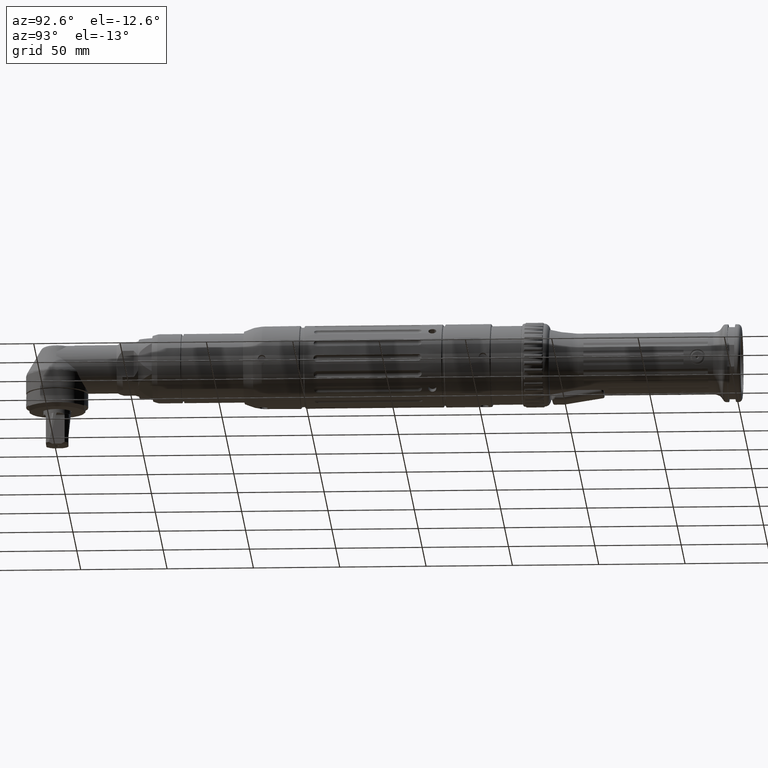
[diagram: clean part render]
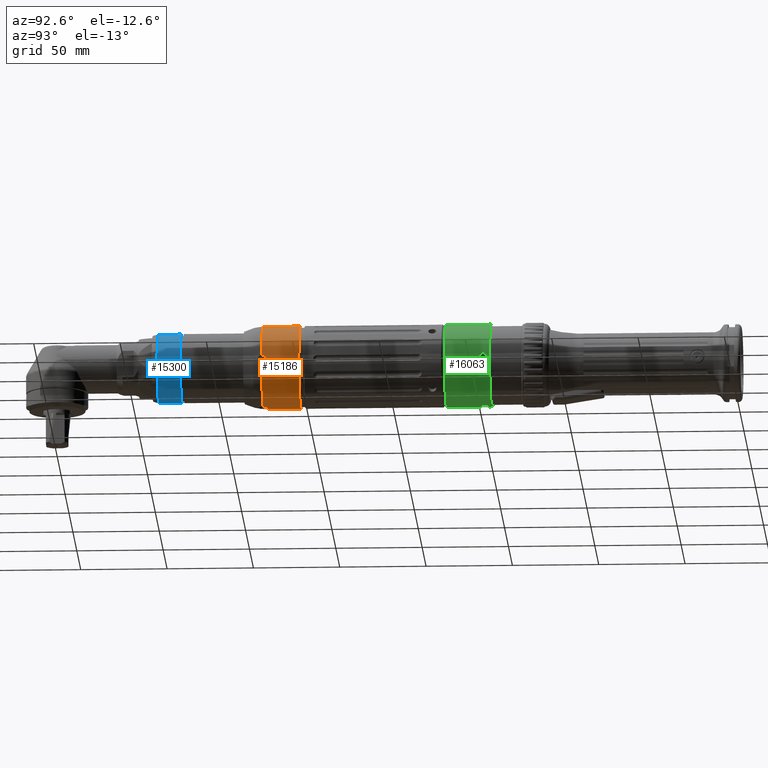
[diagram: same view with three faces highlighted in distinct colors, each labeled with its STEP entity id]
A machine part, auxiliary view with three faces highlighted in distinct colors.
Their STEP definitions:

[orange] entity #15186 — the highlighted cylindrical surface (bore or boss wall) has radius 24 mm, axis along (0, 1, 0).
#359=B_SPLINE_CURVE_WITH_KNOTS('',3,(#23452,#23453,#23454,#23455,#23456,
#23457,#23458,#23459,#23460,#23461,#23462,#23463,#23464),.UNSPECIFIED.,
 .F.,.F.,(4,2,2,2,3,4),(-0.346780210802975,-0.260085282455453,-0.173390354107931,
-0.0866951770539655,0.,0.0111795925618455),.UNSPECIFIED.);
#360=B_SPLINE_CURVE_WITH_KNOTS('',3,(#23466,#23467,#23468,#23469,#23470,
#23471,#23472,#23473,#23474,#23475,#23476,#23477),.UNSPECIFIED.,.F.,.F.,
(4,2,2,2,2,4),(-0.704740014157612,-0.693560421605951,-0.606865244551985,
-0.52017006749802,-0.433475139150498,-0.346780210802975),.UNSPECIFIED.);
#362=B_SPLINE_CURVE_WITH_KNOTS('',3,(#23506,#23507,#23508,#23509,#23510,
#23511,#23512,#23513,#23514,#23515,#23516,#23517,#23518),.UNSPECIFIED.,
 .F.,.F.,(4,2,2,2,3,4),(-0.346780210802976,-0.260085282455453,-0.173390354107931,
-0.0866951770539657,0.,0.011179592561845),.UNSPECIFIED.);
#363=B_SPLINE_CURVE_WITH_KNOTS('',3,(#23520,#23521,#23522,#23523,#23524,
#23525,#23526,#23527,#23528,#23529,#23530,#23531),.UNSPECIFIED.,.F.,.F.,
(4,2,2,2,2,4),(-0.704740014157611,-0.693560421605951,-0.606865244551986,
-0.52017006749802,-0.433475139150498,-0.346780210802976),.UNSPECIFIED.);
#366=B_SPLINE_CURVE_WITH_KNOTS('',3,(#23565,#23566,#23567,#23568,#23569,
#23570,#23571,#23572,#23573,#23574,#23575,#23576,#23577),.UNSPECIFIED.,
 .F.,.F.,(4,2,2,2,3,4),(-0.346780210802976,-0.260085282455453,-0.173390354107931,
-0.0866951770539657,0.,0.011179592561845),.UNSPECIFIED.);
#367=B_SPLINE_CURVE_WITH_KNOTS('',3,(#23579,#23580,#23581,#23582,#23583,
#23584,#23585,#23586,#23587,#23588,#23589,#23590),.UNSPECIFIED.,.F.,.F.,
(4,2,2,2,2,4),(-0.704740014157611,-0.693560421605951,-0.606865244551985,
-0.52017006749802,-0.433475139150498,-0.346780210802976),.UNSPECIFIED.);
#369=B_SPLINE_CURVE_WITH_KNOTS('',3,(#23617,#23618,#23619,#23620,#23621,
#23622,#23623,#23624,#23625,#23626,#23627,#23628),.UNSPECIFIED.,.F.,.F.,
(4,2,2,2,2,4),(-0.704740014157611,-0.693560421605951,-0.606865244551986,
-0.52017006749802,-0.433475139150498,-0.346780210802976),.UNSPECIFIED.);
#370=B_SPLINE_CURVE_WITH_KNOTS('',3,(#23630,#23631,#23632,#23633,#23634,
#23635,#23636,#23637,#23638,#23639,#23640,#23641,#23642),.UNSPECIFIED.,
 .F.,.F.,(4,2,2,2,3,4),(-0.346780210802976,-0.260085282455453,-0.173390354107931,
-0.0866951770539657,0.,0.011179592561845),.UNSPECIFIED.);
#1028=FACE_BOUND('',#4054,.T.);
#3089=FACE_OUTER_BOUND('',#4053,.T.);
#4053=EDGE_LOOP('',(#9931,#9932,#9933,#9934,#9935,#9936,#9937,#9938,#9939,
#9940,#9941,#9942));
#4054=EDGE_LOOP('',(#9943));
#5269=CIRCLE('',#16208,24.);
#5270=CIRCLE('',#16209,24.);
#5271=CIRCLE('',#16210,24.);
#5272=CIRCLE('',#16211,24.);
#5273=CIRCLE('',#16212,24.);
#6277=VERTEX_POINT('',#23450);
#6278=VERTEX_POINT('',#23451);
#6279=VERTEX_POINT('',#23465);
#6281=VERTEX_POINT('',#23504);
#6282=VERTEX_POINT('',#23505);
#6283=VERTEX_POINT('',#23519);
#6286=VERTEX_POINT('',#23563);
#6287=VERTEX_POINT('',#23564);
#6288=VERTEX_POINT('',#23578);
#6289=VERTEX_POINT('',#23614);
#6290=VERTEX_POINT('',#23616);
#6291=VERTEX_POINT('',#23629);
#6292=VERTEX_POINT('',#23646);
#7730=EDGE_CURVE('',#6277,#6278,#359,.T.);
#7731=EDGE_CURVE('',#6279,#6277,#360,.T.);
#7734=EDGE_CURVE('',#6281,#6282,#362,.T.);
#7735=EDGE_CURVE('',#6283,#6281,#363,.T.);
#7739=EDGE_CURVE('',#6286,#6287,#366,.T.);
#7740=EDGE_CURVE('',#6288,#6286,#367,.T.);
#7742=EDGE_CURVE('',#6289,#6278,#5269,.T.);
#7743=EDGE_CURVE('',#6289,#6290,#369,.T.);
#7744=EDGE_CURVE('',#6290,#6291,#370,.T.);
#7745=EDGE_CURVE('',#6288,#6291,#5270,.T.);
#7746=EDGE_CURVE('',#6283,#6287,#5271,.T.);
#7747=EDGE_CURVE('',#6279,#6282,#5272,.T.);
#7748=EDGE_CURVE('',#6292,#6292,#5273,.T.);
#9931=ORIENTED_EDGE('',*,*,#7731,.T.);
#9932=ORIENTED_EDGE('',*,*,#7730,.T.);
#9933=ORIENTED_EDGE('',*,*,#7742,.F.);
#9934=ORIENTED_EDGE('',*,*,#7743,.T.);
#9935=ORIENTED_EDGE('',*,*,#7744,.T.);
#9936=ORIENTED_EDGE('',*,*,#7745,.F.);
#9937=ORIENTED_EDGE('',*,*,#7740,.T.);
#9938=ORIENTED_EDGE('',*,*,#7739,.T.);
#9939=ORIENTED_EDGE('',*,*,#7746,.F.);
#9940=ORIENTED_EDGE('',*,*,#7735,.T.);
#9941=ORIENTED_EDGE('',*,*,#7734,.T.);
#9942=ORIENTED_EDGE('',*,*,#7747,.F.);
#9943=ORIENTED_EDGE('',*,*,#7748,.F.);
#13927=CYLINDRICAL_SURFACE('',#16207,24.);
#15186=ADVANCED_FACE('',(#3089,#1028),#13927,.T.);
#16207=AXIS2_PLACEMENT_3D('',#23613,#18376,#18377);
#16208=AXIS2_PLACEMENT_3D('',#23615,#18378,#18379);
#16209=AXIS2_PLACEMENT_3D('',#23643,#18380,#18381);
#16210=AXIS2_PLACEMENT_3D('',#23644,#18382,#18383);
#16211=AXIS2_PLACEMENT_3D('',#23645,#18384,#18385);
#16212=AXIS2_PLACEMENT_3D('',#23647,#18386,#18387);
#18376=DIRECTION('center_axis',(4.4981039857617E-16,1.,2.2204460492503E-16));
#18377=DIRECTION('ref_axis',(5.55111512312578E-17,2.51990699454335E-16,
-1.));
#18378=DIRECTION('center_axis',(-4.4981039857617E-16,-1.,-2.2204460492503E-16));
#18379=DIRECTION('ref_axis',(-1.16743491188625E-16,-2.28861053107978E-16,
1.));
#18380=DIRECTION('center_axis',(-4.4981039857617E-16,-1.,-2.2204460492503E-16));
#18381=DIRECTION('ref_axis',(-1.16743491188625E-16,-2.28861053107978E-16,
1.));
#18382=DIRECTION('center_axis',(-4.4981039857617E-16,-1.,-2.2204460492503E-16));
#18383=DIRECTION('ref_axis',(-1.16743491188625E-16,-2.28861053107978E-16,
1.));
#18384=DIRECTION('center_axis',(-4.4981039857617E-16,-1.,-2.2204460492503E-16));
#18385=DIRECTION('ref_axis',(-1.16743491188625E-16,-2.28861053107978E-16,
1.));
#18386=DIRECTION('center_axis',(4.4981039857617E-16,1.,2.2204460492503E-16));
#18387=DIRECTION('ref_axis',(-5.55111512312578E-17,-2.51990699454335E-16,
1.));
#23450=CARTESIAN_POINT('',(24.,121.849,-9.53148215892962E-15));
#23451=CARTESIAN_POINT('',(23.8898031167809,119.436336968991,-2.29723900398802));
#23452=CARTESIAN_POINT('Ctrl Pts',(24.,121.849,-7.21644966006352E-15));
#23453=CARTESIAN_POINT('Ctrl Pts',(24.,121.849,-0.288983094491747));
#23454=CARTESIAN_POINT('Ctrl Pts',(23.9942458777241,121.791210372736,-0.597107708299737));
#23455=CARTESIAN_POINT('Ctrl Pts',(23.973445925003,121.556431598232,-1.16372820642614));
#23456=CARTESIAN_POINT('Ctrl Pts',(23.9586954584595,121.379452241998,-1.42223895146047));
#23457=CARTESIAN_POINT('Ctrl Pts',(23.930969357562,120.971238365929,-1.83045282752948));
#23458=CARTESIAN_POINT('Ctrl Pts',(23.9161892225175,120.712727878039,-2.00743172739182));
#23459=CARTESIAN_POINT('Ctrl Pts',(23.895321356337,120.14610823924,-2.24221015964837));
#23460=CARTESIAN_POINT('Ctrl Pts',(23.8895374588961,119.837983923513,-2.30000000000001));
#23461=CARTESIAN_POINT('Ctrl Pts',(23.8895374588961,119.549,-2.30000000000001));
#23462=CARTESIAN_POINT('Ctrl Pts',(23.8895374588961,119.51173469146,-2.30000000000001));
#23463=CARTESIAN_POINT('Ctrl Pts',(23.889624800958,119.474148217854,-2.2990933734706));
#23464=CARTESIAN_POINT('Ctrl Pts',(23.8898031167809,119.436336968991,-2.29723900398802));
#23465=CARTESIAN_POINT('',(23.8898031167809,119.436336968991,2.297239003988));
#23466=CARTESIAN_POINT('Ctrl Pts',(23.8898031167809,119.436336968991,2.297239003988));
#23467=CARTESIAN_POINT('Ctrl Pts',(23.8896248009578,119.474148217883,2.29909337347202));
#23468=CARTESIAN_POINT('Ctrl Pts',(23.8895374588961,119.511734691494,2.29999999999999));
#23469=CARTESIAN_POINT('Ctrl Pts',(23.8895374588961,119.837983923513,2.29999999999999));
#23470=CARTESIAN_POINT('Ctrl Pts',(23.895321356337,120.14610823924,2.24221015964835));
#23471=CARTESIAN_POINT('Ctrl Pts',(23.9161892225175,120.712727878039,2.0074317273918));
#23472=CARTESIAN_POINT('Ctrl Pts',(23.930969357562,120.971238365929,1.83045282752946));
#23473=CARTESIAN_POINT('Ctrl Pts',(23.9586954584595,121.379452241998,1.42223895146045));
#23474=CARTESIAN_POINT('Ctrl Pts',(23.973445925003,121.556431598232,1.16372820642613));
#23475=CARTESIAN_POINT('Ctrl Pts',(23.9942458777241,121.791210372736,0.59710770829972));
#23476=CARTESIAN_POINT('Ctrl Pts',(24.,121.849,0.288983094491731));
#23477=CARTESIAN_POINT('Ctrl Pts',(24.,121.849,-9.57567358739198E-15));
#23504=CARTESIAN_POINT('',(-1.49057558604841E-14,121.849,24.));
#23505=CARTESIAN_POINT('',(2.29723900398799,119.436336968991,23.8898031167809));
#23506=CARTESIAN_POINT('Ctrl Pts',(-1.61329283265843E-14,121.849,24.));
#23507=CARTESIAN_POINT('Ctrl Pts',(0.288983094491725,121.849,24.));
#23508=CARTESIAN_POINT('Ctrl Pts',(0.597107708299715,121.791210372736,23.9942458777241));
#23509=CARTESIAN_POINT('Ctrl Pts',(1.16372820642612,121.556431598232,23.973445925003));
#23510=CARTESIAN_POINT('Ctrl Pts',(1.42223895146044,121.379452241998,23.9586954584595));
#23511=CARTESIAN_POINT('Ctrl Pts',(1.83045282752945,120.971238365929,23.930969357562));
#23512=CARTESIAN_POINT('Ctrl Pts',(2.0074317273918,120.712727878039,23.9161892225175));
#23513=CARTESIAN_POINT('Ctrl Pts',(2.24221015964834,120.14610823924,23.895321356337));
#23514=CARTESIAN_POINT('Ctrl Pts',(2.29999999999998,119.837983923513,23.8895374588961));
#23515=CARTESIAN_POINT('Ctrl Pts',(2.29999999999998,119.549,23.8895374588961));
#23516=CARTESIAN_POINT('Ctrl Pts',(2.29999999999998,119.51173469146,23.8895374588961));
#23517=CARTESIAN_POINT('Ctrl Pts',(2.29909337347058,119.474148217854,23.889624800958));
#23518=CARTESIAN_POINT('Ctrl Pts',(2.29723900398799,119.436336968991,23.8898031167809));
#23519=CARTESIAN_POINT('',(-2.29723900398802,119.436336968991,23.8898031167809));
#23520=CARTESIAN_POINT('Ctrl Pts',(-2.29723900398803,119.436336968991,23.8898031167809));
#23521=CARTESIAN_POINT('Ctrl Pts',(-2.29909337347204,119.474148217883,23.8896248009578));
#23522=CARTESIAN_POINT('Ctrl Pts',(-2.30000000000002,119.511734691494,23.8895374588961));
#23523=CARTESIAN_POINT('Ctrl Pts',(-2.30000000000002,119.837983923513,23.8895374588961));
#23524=CARTESIAN_POINT('Ctrl Pts',(-2.24221015964837,120.14610823924,23.895321356337));
#23525=CARTESIAN_POINT('Ctrl Pts',(-2.00743172739183,120.712727878039,23.9161892225175));
#23526=CARTESIAN_POINT('Ctrl Pts',(-1.83045282752948,120.971238365929,23.930969357562));
#23527=CARTESIAN_POINT('Ctrl Pts',(-1.42223895146047,121.379452241998,23.9586954584595));
#23528=CARTESIAN_POINT('Ctrl Pts',(-1.16372820642615,121.556431598232,23.973445925003));
#23529=CARTESIAN_POINT('Ctrl Pts',(-0.597107708299745,121.791210372736,
23.9942458777241));
#23530=CARTESIAN_POINT('Ctrl Pts',(-0.288983094491757,121.849,24.));
#23531=CARTESIAN_POINT('Ctrl Pts',(-1.65839564303383E-14,121.849,24.));
#23563=CARTESIAN_POINT('',(-24.,121.849,-1.80743220539373E-14));
#23564=CARTESIAN_POINT('',(-23.8898031167809,119.436336968991,2.29723900398799));
#23565=CARTESIAN_POINT('Ctrl Pts',(-24.,121.849,-2.08166817117217E-14));
#23566=CARTESIAN_POINT('Ctrl Pts',(-24.,121.849,0.28898309449172));
#23567=CARTESIAN_POINT('Ctrl Pts',(-23.9942458777241,121.791210372736,0.597107708299711));
#23568=CARTESIAN_POINT('Ctrl Pts',(-23.973445925003,121.556431598232,1.16372820642612));
#23569=CARTESIAN_POINT('Ctrl Pts',(-23.9586954584595,121.379452241998,1.42223895146044));
#23570=CARTESIAN_POINT('Ctrl Pts',(-23.930969357562,120.971238365929,1.83045282752945));
#23571=CARTESIAN_POINT('Ctrl Pts',(-23.9161892225175,120.712727878039,2.00743172739179));
#23572=CARTESIAN_POINT('Ctrl Pts',(-23.895321356337,120.14610823924,2.24221015964834));
#23573=CARTESIAN_POINT('Ctrl Pts',(-23.8895374588961,119.837983923513,2.29999999999998));
#23574=CARTESIAN_POINT('Ctrl Pts',(-23.8895374588961,119.549,2.29999999999998));
#23575=CARTESIAN_POINT('Ctrl Pts',(-23.8895374588961,119.511734691461,2.29999999999998));
#23576=CARTESIAN_POINT('Ctrl Pts',(-23.889624800958,119.474148217854,2.29909337347058));
#23577=CARTESIAN_POINT('Ctrl Pts',(-23.8898031167809,119.436336968991,2.29723900398799));
#23578=CARTESIAN_POINT('',(-23.8898031167809,119.436336968991,-2.29723900398803));
#23579=CARTESIAN_POINT('Ctrl Pts',(-23.8898031167809,119.436336968991,-2.29723900398803));
#23580=CARTESIAN_POINT('Ctrl Pts',(-23.8896248009578,119.474148217883,-2.29909337347205));
#23581=CARTESIAN_POINT('Ctrl Pts',(-23.8895374588961,119.511734691494,-2.30000000000002));
#23582=CARTESIAN_POINT('Ctrl Pts',(-23.8895374588961,119.837983923513,-2.30000000000002));
#23583=CARTESIAN_POINT('Ctrl Pts',(-23.895321356337,120.14610823924,-2.24221015964838));
#23584=CARTESIAN_POINT('Ctrl Pts',(-23.9161892225175,120.712727878039,-2.00743172739183));
#23585=CARTESIAN_POINT('Ctrl Pts',(-23.930969357562,120.971238365929,-1.83045282752948));
#23586=CARTESIAN_POINT('Ctrl Pts',(-23.9586954584595,121.379452241998,-1.42223895146048));
#23587=CARTESIAN_POINT('Ctrl Pts',(-23.973445925003,121.556431598232,-1.16372820642615));
#23588=CARTESIAN_POINT('Ctrl Pts',(-23.9942458777241,121.791210372736,-0.597107708299747));
#23589=CARTESIAN_POINT('Ctrl Pts',(-24.,121.849,-0.288983094491759));
#23590=CARTESIAN_POINT('Ctrl Pts',(-24.,121.849,-1.92901250528621E-14));
#23613=CARTESIAN_POINT('Origin',(-7.34117676785069E-15,129.170216129182,
-1.34275998921614E-14));
#23614=CARTESIAN_POINT('',(2.297239003988,119.436336968991,-23.889803116781));
#23615=CARTESIAN_POINT('Origin',(-1.17195768325885E-14,119.436336968991,
-1.5588955244674E-14));
#23616=CARTESIAN_POINT('',(-9.30206828343011E-15,121.849,-24.));
#23617=CARTESIAN_POINT('Ctrl Pts',(2.297239003988,119.436336968991,-23.889803116781));
#23618=CARTESIAN_POINT('Ctrl Pts',(2.29909337347202,119.474148217883,-23.8896248009579));
#23619=CARTESIAN_POINT('Ctrl Pts',(2.29999999999999,119.511734691494,-23.8895374588961));
#23620=CARTESIAN_POINT('Ctrl Pts',(2.29999999999999,119.837983923513,-23.8895374588961));
#23621=CARTESIAN_POINT('Ctrl Pts',(2.24221015964835,120.14610823924,-23.895321356337));
#23622=CARTESIAN_POINT('Ctrl Pts',(2.0074317273918,120.712727878039,-23.9161892225175));
#23623=CARTESIAN_POINT('Ctrl Pts',(1.83045282752946,120.971238365929,-23.9309693575621));
#23624=CARTESIAN_POINT('Ctrl Pts',(1.42223895146045,121.379452241998,-23.9586954584595));
#23625=CARTESIAN_POINT('Ctrl Pts',(1.16372820642612,121.556431598232,-23.973445925003));
#23626=CARTESIAN_POINT('Ctrl Pts',(0.597107708299719,121.791210372736,-23.9942458777241));
#23627=CARTESIAN_POINT('Ctrl Pts',(0.28898309449173,121.849,-24.));
#23628=CARTESIAN_POINT('Ctrl Pts',(-1.02001740387436E-14,121.849,-24.));
#23629=CARTESIAN_POINT('',(-2.29723900398802,119.436336968991,-23.889803116781));
#23630=CARTESIAN_POINT('Ctrl Pts',(-6.73072708679001E-15,121.849,-24.));
#23631=CARTESIAN_POINT('Ctrl Pts',(-0.288983094491747,121.849,-24.));
#23632=CARTESIAN_POINT('Ctrl Pts',(-0.597107708299738,121.791210372736,
-23.9942458777241));
#23633=CARTESIAN_POINT('Ctrl Pts',(-1.16372820642614,121.556431598232,-23.973445925003));
#23634=CARTESIAN_POINT('Ctrl Pts',(-1.42223895146047,121.379452241998,-23.9586954584595));
#23635=CARTESIAN_POINT('Ctrl Pts',(-1.83045282752948,120.971238365929,-23.9309693575621));
#23636=CARTESIAN_POINT('Ctrl Pts',(-2.00743172739182,120.712727878039,-23.9161892225175));
#23637=CARTESIAN_POINT('Ctrl Pts',(-2.24221015964837,120.14610823924,-23.895321356337));
#23638=CARTESIAN_POINT('Ctrl Pts',(-2.30000000000001,119.837983923513,-23.8895374588961));
#23639=CARTESIAN_POINT('Ctrl Pts',(-2.30000000000001,119.549,-23.8895374588961));
#23640=CARTESIAN_POINT('Ctrl Pts',(-2.30000000000001,119.511734691461,-23.8895374588961));
#23641=CARTESIAN_POINT('Ctrl Pts',(-2.2990933734706,119.474148217854,-23.889624800958));
#23642=CARTESIAN_POINT('Ctrl Pts',(-2.29723900398802,119.436336968991,-23.889803116781));
#23643=CARTESIAN_POINT('Origin',(-1.17195768325885E-14,119.436336968991,
-1.5588955244674E-14));
#23644=CARTESIAN_POINT('Origin',(-1.17195768325885E-14,119.436336968991,
-1.5588955244674E-14));
#23645=CARTESIAN_POINT('Origin',(-1.17195768325885E-14,119.436336968991,
-1.5588955244674E-14));
#23646=CARTESIAN_POINT('',(-3.60486094872129E-15,141.049,-24.));
#23647=CARTESIAN_POINT('Origin',(-1.99797626031783E-15,141.049,-1.07899800205757E-14));

[blue] entity #15300 — the highlighted cylindrical surface (bore or boss wall) has radius 20 mm, axis along (-0, 1, -0).
#1064=FACE_BOUND('',#4204,.T.);
#3203=FACE_OUTER_BOUND('',#4203,.T.);
#4203=EDGE_LOOP('',(#10448));
#4204=EDGE_LOOP('',(#10449));
#5337=CIRCLE('',#16386,20.);
#5340=CIRCLE('',#16391,20.);
#6462=VERTEX_POINT('',#24584);
#6465=VERTEX_POINT('',#24592);
#7996=EDGE_CURVE('',#6462,#6462,#5337,.T.);
#7999=EDGE_CURVE('',#6465,#6465,#5340,.T.);
#10448=ORIENTED_EDGE('',*,*,#7999,.T.);
#10449=ORIENTED_EDGE('',*,*,#7996,.F.);
#13949=CYLINDRICAL_SURFACE('',#16390,20.);
#15300=ADVANCED_FACE('',(#3203,#1064),#13949,.T.);
#16386=AXIS2_PLACEMENT_3D('',#24585,#18854,#18855);
#16390=AXIS2_PLACEMENT_3D('',#24591,#18862,#18863);
#16391=AXIS2_PLACEMENT_3D('',#24593,#18864,#18865);
#18854=DIRECTION('center_axis',(-5.60832701038685E-16,1.,-8.72626708289614E-15));
#18855=DIRECTION('ref_axis',(0.657193036454636,-6.20860679275982E-15,-0.753722304854736));
#18862=DIRECTION('center_axis',(-5.60832701038685E-16,1.,-8.72626708289614E-15));
#18863=DIRECTION('ref_axis',(-0.657193036454636,6.20860679275982E-15,0.753722304854736));
#18864=DIRECTION('center_axis',(-5.60832701038685E-16,1.,-8.72626708289614E-15));
#18865=DIRECTION('ref_axis',(-0.657193036454636,6.20860679275982E-15,0.753722304854736));
#24584=CARTESIAN_POINT('',(-13.1438607290933,72.25,15.0744460970946));
#24585=CARTESIAN_POINT('Origin',(-6.166570103755E-13,72.2499999999999,-7.95549205930161E-14));
#24591=CARTESIAN_POINT('Origin',(-6.12954435625062E-13,65.6480762113532,
-2.19447703523595E-14));
#24592=CARTESIAN_POINT('',(-13.1438607290933,58.7461524227066,15.0744460970948));
#24593=CARTESIAN_POINT('Origin',(-6.09083611064312E-13,58.7461524227065,
3.8283260013166E-14));

[green] entity #16063 — the highlighted cylindrical surface (bore or boss wall) has radius 24 mm, axis along (-0, 1, -0).
#482=B_SPLINE_CURVE_WITH_KNOTS('',3,(#29670,#29671,#29672,#29673,#29674,
#29675,#29676,#29677,#29678,#29679,#29680,#29681,#29682,#29683,#29684,#29685,
#29686,#29687),.UNSPECIFIED.,.F.,.F.,(4,2,2,2,2,2,2,2,4),(0.346780210802975,
0.433475139150498,0.52017006749802,0.606865244551985,0.693560421605951,
0.780255598659916,0.866950775713882,0.953645704061404,1.04034063240893),
 .UNSPECIFIED.);
#483=B_SPLINE_CURVE_WITH_KNOTS('',3,(#29688,#29689,#29690,#29691,#29692,
#29693,#29694,#29695,#29696,#29697,#29698,#29699,#29700,#29701,#29702,#29703,
#29704,#29705,#29706),.UNSPECIFIED.,.F.,.F.,(4,2,2,2,3,2,2,2,4),(1.04034063240893,
1.12703556075645,1.21373048910397,1.30042566615794,1.3871208432119,1.47381602026587,
1.56051119731983,1.64720612566736,1.73390105401488),.UNSPECIFIED.);
#484=B_SPLINE_CURVE_WITH_KNOTS('',3,(#29709,#29710,#29711,#29712,#29713,
#29714,#29715,#29716,#29717,#29718,#29719,#29720,#29721,#29722,#29723,#29724,
#29725,#29726),.UNSPECIFIED.,.F.,.F.,(4,2,2,2,2,2,2,2,4),(0.346780210802975,
0.433475139150498,0.52017006749802,0.606865244551985,0.693560421605951,
0.780255598659916,0.866950775713882,0.953645704061404,1.04034063240893),
 .UNSPECIFIED.);
#485=B_SPLINE_CURVE_WITH_KNOTS('',3,(#29727,#29728,#29729,#29730,#29731,
#29732,#29733,#29734,#29735,#29736,#29737,#29738,#29739,#29740,#29741,#29742,
#29743,#29744,#29745),.UNSPECIFIED.,.F.,.F.,(4,2,2,2,3,2,2,2,4),(1.04034063240893,
1.12703556075645,1.21373048910397,1.30042566615794,1.3871208432119,1.47381602026587,
1.56051119731983,1.64720612566736,1.73390105401488),.UNSPECIFIED.);
#486=B_SPLINE_CURVE_WITH_KNOTS('',3,(#29748,#29749,#29750,#29751,#29752,
#29753,#29754,#29755,#29756,#29757,#29758,#29759,#29760,#29761,#29762,#29763,
#29764,#29765),.UNSPECIFIED.,.F.,.F.,(4,2,2,2,2,2,2,2,4),(0.346780210802975,
0.433475139150498,0.52017006749802,0.606865244551985,0.693560421605951,
0.780255598659917,0.866950775713882,0.953645704061404,1.04034063240893),
 .UNSPECIFIED.);
#487=B_SPLINE_CURVE_WITH_KNOTS('',3,(#29766,#29767,#29768,#29769,#29770,
#29771,#29772,#29773,#29774,#29775,#29776,#29777,#29778,#29779,#29780,#29781,
#29782,#29783,#29784),.UNSPECIFIED.,.F.,.F.,(4,2,2,2,3,2,2,2,4),(1.04034063240893,
1.12703556075645,1.21373048910397,1.30042566615794,1.3871208432119,1.47381602026587,
1.56051119731983,1.64720612566736,1.73390105401488),.UNSPECIFIED.);
#488=B_SPLINE_CURVE_WITH_KNOTS('',3,(#29787,#29788,#29789,#29790,#29791,
#29792,#29793,#29794,#29795,#29796,#29797,#29798,#29799,#29800,#29801,#29802,
#29803,#29804),.UNSPECIFIED.,.F.,.F.,(4,2,2,2,2,2,2,2,4),(0.346780210802975,
0.433475139150498,0.52017006749802,0.606865244551985,0.693560421605951,
0.780255598659916,0.866950775713882,0.953645704061404,1.04034063240893),
 .UNSPECIFIED.);
#489=B_SPLINE_CURVE_WITH_KNOTS('',3,(#29805,#29806,#29807,#29808,#29809,
#29810,#29811,#29812,#29813,#29814,#29815,#29816,#29817,#29818,#29819,#29820,
#29821,#29822,#29823),.UNSPECIFIED.,.F.,.F.,(4,2,2,2,3,2,2,2,4),(1.04034063240893,
1.12703556075645,1.21373048910397,1.30042566615794,1.3871208432119,1.47381602026587,
1.56051119731983,1.64720612566736,1.73390105401488),.UNSPECIFIED.);
#1285=FACE_BOUND('',#5188,.T.);
#1286=FACE_BOUND('',#5189,.T.);
#1287=FACE_BOUND('',#5190,.T.);
#1288=FACE_BOUND('',#5191,.T.);
#1289=FACE_BOUND('',#5192,.T.);
#3966=FACE_OUTER_BOUND('',#5187,.T.);
#5187=EDGE_LOOP('',(#13873));
#5188=EDGE_LOOP('',(#13874,#13875));
#5189=EDGE_LOOP('',(#13876,#13877));
#5190=EDGE_LOOP('',(#13878,#13879));
#5191=EDGE_LOOP('',(#13880,#13881));
#5192=EDGE_LOOP('',(#13882));
#6120=CIRCLE('',#18020,24.);
#6122=CIRCLE('',#18024,24.);
#7531=VERTEX_POINT('',#29662);
#7533=VERTEX_POINT('',#29668);
#7534=VERTEX_POINT('',#29669);
#7535=VERTEX_POINT('',#29707);
#7536=VERTEX_POINT('',#29708);
#7537=VERTEX_POINT('',#29746);
#7538=VERTEX_POINT('',#29747);
#7539=VERTEX_POINT('',#29785);
#7540=VERTEX_POINT('',#29786);
#7541=VERTEX_POINT('',#29824);
#9642=EDGE_CURVE('',#7531,#7531,#6120,.T.);
#9644=EDGE_CURVE('',#7533,#7534,#482,.T.);
#9645=EDGE_CURVE('',#7534,#7533,#483,.T.);
#9646=EDGE_CURVE('',#7535,#7536,#484,.T.);
#9647=EDGE_CURVE('',#7536,#7535,#485,.T.);
#9648=EDGE_CURVE('',#7537,#7538,#486,.T.);
#9649=EDGE_CURVE('',#7538,#7537,#487,.T.);
#9650=EDGE_CURVE('',#7539,#7540,#488,.T.);
#9651=EDGE_CURVE('',#7540,#7539,#489,.T.);
#9652=EDGE_CURVE('',#7541,#7541,#6122,.T.);
#13873=ORIENTED_EDGE('',*,*,#9642,.F.);
#13874=ORIENTED_EDGE('',*,*,#9644,.T.);
#13875=ORIENTED_EDGE('',*,*,#9645,.T.);
#13876=ORIENTED_EDGE('',*,*,#9646,.T.);
#13877=ORIENTED_EDGE('',*,*,#9647,.T.);
#13878=ORIENTED_EDGE('',*,*,#9648,.T.);
#13879=ORIENTED_EDGE('',*,*,#9649,.T.);
#13880=ORIENTED_EDGE('',*,*,#9650,.T.);
#13881=ORIENTED_EDGE('',*,*,#9651,.T.);
#13882=ORIENTED_EDGE('',*,*,#9652,.F.);
#14174=CYLINDRICAL_SURFACE('',#18023,24.);
#16063=ADVANCED_FACE('',(#3966,#1285,#1286,#1287,#1288,#1289),#14174,.T.);
#18020=AXIS2_PLACEMENT_3D('',#29663,#22784,#22785);
#18023=AXIS2_PLACEMENT_3D('',#29667,#22790,#22791);
#18024=AXIS2_PLACEMENT_3D('',#29825,#22792,#22793);
#22784=DIRECTION('center_axis',(3.45661209178547E-15,-1.,3.06093539290138E-16));
#22785=DIRECTION('ref_axis',(1.85581869344527E-16,3.06093539290139E-16,
1.));
#22790=DIRECTION('center_axis',(-3.45661209178547E-15,1.,-3.06093539290138E-16));
#22791=DIRECTION('ref_axis',(-1.85581869344527E-16,-3.06093539290139E-16,
-1.));
#22792=DIRECTION('center_axis',(-3.45661209178547E-15,1.,-3.06093539290138E-16));
#22793=DIRECTION('ref_axis',(1.85581869344527E-16,3.06093539290139E-16,
1.));
#29662=CARTESIAN_POINT('',(-6.55529064887182E-13,225.349,-23.9999999999997));
#29663=CARTESIAN_POINT('Origin',(-6.54014252340867E-13,225.349,3.32058922468933E-13));
#29667=CARTESIAN_POINT('Origin',(-6.99641531952435E-13,238.549,3.28018487750304E-13));
#29668=CARTESIAN_POINT('',(23.9999999999993,245.249,3.25922424649721E-13));
#29669=CARTESIAN_POINT('',(23.9999999999993,249.849,3.24514394368987E-13));
#29670=CARTESIAN_POINT('Ctrl Pts',(23.9999999999993,245.249,3.25156568337093E-13));
#29671=CARTESIAN_POINT('Ctrl Pts',(23.9999999999993,245.249,0.288983094492066));
#29672=CARTESIAN_POINT('Ctrl Pts',(23.9942458777234,245.306789627264,0.597107708300054));
#29673=CARTESIAN_POINT('Ctrl Pts',(23.9734459250023,245.541568401768,1.16372820642646));
#29674=CARTESIAN_POINT('Ctrl Pts',(23.9586954584588,245.718547758002,1.42223895146078));
#29675=CARTESIAN_POINT('Ctrl Pts',(23.9309693575613,246.126761634071,1.83045282752979));
#29676=CARTESIAN_POINT('Ctrl Pts',(23.9161892225167,246.385272121961,2.00743172739214));
#29677=CARTESIAN_POINT('Ctrl Pts',(23.8953213563363,246.95189176076,2.24221015964868));
#29678=CARTESIAN_POINT('Ctrl Pts',(23.8895374588954,247.260016076487,2.30000000000033));
#29679=CARTESIAN_POINT('Ctrl Pts',(23.8895374588954,247.837983923513,2.30000000000033));
#29680=CARTESIAN_POINT('Ctrl Pts',(23.8953213563363,248.14610823924,2.24221015964868));
#29681=CARTESIAN_POINT('Ctrl Pts',(23.9161892225167,248.712727878039,2.00743172739214));
#29682=CARTESIAN_POINT('Ctrl Pts',(23.9309693575613,248.971238365929,1.83045282752979));
#29683=CARTESIAN_POINT('Ctrl Pts',(23.9586954584588,249.379452241998,1.42223895146078));
#29684=CARTESIAN_POINT('Ctrl Pts',(23.9734459250023,249.556431598232,1.16372820642646));
#29685=CARTESIAN_POINT('Ctrl Pts',(23.9942458777234,249.791210372736,0.597107708300054));
#29686=CARTESIAN_POINT('Ctrl Pts',(23.9999999999993,249.849,0.288983094492061));
#29687=CARTESIAN_POINT('Ctrl Pts',(23.9999999999993,249.849,3.21062620933787E-13));
#29688=CARTESIAN_POINT('Ctrl Pts',(23.9999999999993,249.849,3.2504962779859E-13));
#29689=CARTESIAN_POINT('Ctrl Pts',(23.9999999999993,249.849,-0.288983094491416));
#29690=CARTESIAN_POINT('Ctrl Pts',(23.9942458777234,249.791210372736,-0.597107708299404));
#29691=CARTESIAN_POINT('Ctrl Pts',(23.9734459250023,249.556431598232,-1.16372820642581));
#29692=CARTESIAN_POINT('Ctrl Pts',(23.9586954584588,249.379452241998,-1.42223895146013));
#29693=CARTESIAN_POINT('Ctrl Pts',(23.9309693575613,248.971238365929,-1.83045282752914));
#29694=CARTESIAN_POINT('Ctrl Pts',(23.9161892225167,248.712727878039,-2.00743172739149));
#29695=CARTESIAN_POINT('Ctrl Pts',(23.8953213563363,248.14610823924,-2.24221015964803));
#29696=CARTESIAN_POINT('Ctrl Pts',(23.8895374588954,247.837983923513,-2.29999999999967));
#29697=CARTESIAN_POINT('Ctrl Pts',(23.8895374588954,247.549,-2.29999999999967));
#29698=CARTESIAN_POINT('Ctrl Pts',(23.8895374588954,247.260016076487,-2.29999999999967));
#29699=CARTESIAN_POINT('Ctrl Pts',(23.8953213563363,246.95189176076,-2.24221015964803));
#29700=CARTESIAN_POINT('Ctrl Pts',(23.9161892225167,246.385272121961,-2.00743172739149));
#29701=CARTESIAN_POINT('Ctrl Pts',(23.9309693575613,246.126761634071,-1.83045282752914));
#29702=CARTESIAN_POINT('Ctrl Pts',(23.9586954584588,245.718547758002,-1.42223895146013));
#29703=CARTESIAN_POINT('Ctrl Pts',(23.9734459250023,245.541568401768,-1.16372820642581));
#29704=CARTESIAN_POINT('Ctrl Pts',(23.9942458777234,245.306789627264,-0.597107708299404));
#29705=CARTESIAN_POINT('Ctrl Pts',(23.9999999999993,245.249,-0.288983094491414));
#29706=CARTESIAN_POINT('Ctrl Pts',(23.9999999999993,245.249,3.26405569239796E-13));
#29707=CARTESIAN_POINT('',(-7.21286020421083E-13,245.249,24.0000000000003));
#29708=CARTESIAN_POINT('',(-7.37186436043296E-13,249.849,24.0000000000003));
#29709=CARTESIAN_POINT('Ctrl Pts',(-7.20673520859805E-13,245.249,24.0000000000003));
#29710=CARTESIAN_POINT('Ctrl Pts',(-0.288983094492461,245.249,24.0000000000003));
#29711=CARTESIAN_POINT('Ctrl Pts',(-0.59710770830045,245.306789627264,23.9942458777244));
#29712=CARTESIAN_POINT('Ctrl Pts',(-1.16372820642686,245.541568401768,23.9734459250033));
#29713=CARTESIAN_POINT('Ctrl Pts',(-1.42223895146118,245.718547758002,23.9586954584598));
#29714=CARTESIAN_POINT('Ctrl Pts',(-1.83045282753019,246.126761634071,23.9309693575624));
#29715=CARTESIAN_POINT('Ctrl Pts',(-2.00743172739254,246.385272121961,23.9161892225178));
#29716=CARTESIAN_POINT('Ctrl Pts',(-2.24221015964908,246.95189176076,23.8953213563373));
#29717=CARTESIAN_POINT('Ctrl Pts',(-2.30000000000073,247.260016076487,23.8895374588964));
#29718=CARTESIAN_POINT('Ctrl Pts',(-2.30000000000073,247.837983923513,23.8895374588964));
#29719=CARTESIAN_POINT('Ctrl Pts',(-2.24221015964909,248.14610823924,23.8953213563373));
#29720=CARTESIAN_POINT('Ctrl Pts',(-2.00743172739255,248.712727878039,23.9161892225178));
#29721=CARTESIAN_POINT('Ctrl Pts',(-1.8304528275302,248.971238365929,23.9309693575624));
#29722=CARTESIAN_POINT('Ctrl Pts',(-1.42223895146119,249.379452241998,23.9586954584598));
#29723=CARTESIAN_POINT('Ctrl Pts',(-1.16372820642687,249.556431598232,23.9734459250033));
#29724=CARTESIAN_POINT('Ctrl Pts',(-0.597107708300466,249.791210372736,
23.9942458777244));
#29725=CARTESIAN_POINT('Ctrl Pts',(-0.288983094492473,249.849,24.0000000000003));
#29726=CARTESIAN_POINT('Ctrl Pts',(-7.32747196252603E-13,249.849,24.0000000000003));
#29727=CARTESIAN_POINT('Ctrl Pts',(-7.39200367583237E-13,249.849,24.0000000000003));
#29728=CARTESIAN_POINT('Ctrl Pts',(0.288983094491002,249.849,24.0000000000003));
#29729=CARTESIAN_POINT('Ctrl Pts',(0.597107708298992,249.791210372736,23.9942458777244));
#29730=CARTESIAN_POINT('Ctrl Pts',(1.1637282064254,249.556431598232,23.9734459250033));
#29731=CARTESIAN_POINT('Ctrl Pts',(1.42223895145972,249.379452241998,23.9586954584598));
#29732=CARTESIAN_POINT('Ctrl Pts',(1.83045282752873,248.971238365929,23.9309693575624));
#29733=CARTESIAN_POINT('Ctrl Pts',(2.00743172739108,248.712727878039,23.9161892225178));
#29734=CARTESIAN_POINT('Ctrl Pts',(2.24221015964763,248.14610823924,23.8953213563373));
#29735=CARTESIAN_POINT('Ctrl Pts',(2.29999999999927,247.837983923513,23.8895374588964));
#29736=CARTESIAN_POINT('Ctrl Pts',(2.29999999999927,247.549,23.8895374588964));
#29737=CARTESIAN_POINT('Ctrl Pts',(2.29999999999927,247.260016076487,23.8895374588964));
#29738=CARTESIAN_POINT('Ctrl Pts',(2.24221015964763,246.95189176076,23.8953213563373));
#29739=CARTESIAN_POINT('Ctrl Pts',(2.00743172739109,246.385272121961,23.9161892225178));
#29740=CARTESIAN_POINT('Ctrl Pts',(1.83045282752874,246.126761634071,23.9309693575624));
#29741=CARTESIAN_POINT('Ctrl Pts',(1.42223895145973,245.718547758002,23.9586954584598));
#29742=CARTESIAN_POINT('Ctrl Pts',(1.16372820642541,245.541568401768,23.9734459250033));
#29743=CARTESIAN_POINT('Ctrl Pts',(0.597107708299008,245.306789627264,23.9942458777244));
#29744=CARTESIAN_POINT('Ctrl Pts',(0.288983094491021,245.249,24.0000000000003));
#29745=CARTESIAN_POINT('Ctrl Pts',(-7.19424519957101E-13,245.249,24.0000000000003));
#29746=CARTESIAN_POINT('',(-24.0000000000007,245.249,3.28952049742352E-13));
#29747=CARTESIAN_POINT('',(-24.0000000000007,249.849,3.27544019461617E-13));
#29748=CARTESIAN_POINT('Ctrl Pts',(-24.0000000000007,245.249,3.32373017997156E-13));
#29749=CARTESIAN_POINT('Ctrl Pts',(-24.0000000000007,245.249,-0.288983094491408));
#29750=CARTESIAN_POINT('Ctrl Pts',(-23.9942458777248,245.306789627264,-0.597107708299399));
#29751=CARTESIAN_POINT('Ctrl Pts',(-23.9734459250037,245.541568401768,-1.16372820642581));
#29752=CARTESIAN_POINT('Ctrl Pts',(-23.9586954584602,245.718547758002,-1.42223895146013));
#29753=CARTESIAN_POINT('Ctrl Pts',(-23.9309693575628,246.126761634071,-1.83045282752914));
#29754=CARTESIAN_POINT('Ctrl Pts',(-23.9161892225182,246.385272121961,-2.00743172739148));
#29755=CARTESIAN_POINT('Ctrl Pts',(-23.8953213563377,246.95189176076,-2.24221015964803));
#29756=CARTESIAN_POINT('Ctrl Pts',(-23.8895374588968,247.260016076487,-2.29999999999967));
#29757=CARTESIAN_POINT('Ctrl Pts',(-23.8895374588968,247.837983923513,-2.29999999999967));
#29758=CARTESIAN_POINT('Ctrl Pts',(-23.8953213563377,248.14610823924,-2.24221015964803));
#29759=CARTESIAN_POINT('Ctrl Pts',(-23.9161892225182,248.712727878039,-2.00743172739148));
#29760=CARTESIAN_POINT('Ctrl Pts',(-23.9309693575628,248.971238365928,-1.83045282752914));
#29761=CARTESIAN_POINT('Ctrl Pts',(-23.9586954584602,249.379452241997,-1.42223895146013));
#29762=CARTESIAN_POINT('Ctrl Pts',(-23.9734459250037,249.556431598232,-1.16372820642581));
#29763=CARTESIAN_POINT('Ctrl Pts',(-23.9942458777248,249.791210372736,-0.597107708299401));
#29764=CARTESIAN_POINT('Ctrl Pts',(-24.0000000000007,249.849,-0.288983094491413));
#29765=CARTESIAN_POINT('Ctrl Pts',(-24.0000000000007,249.849,3.27238236508265E-13));
#29766=CARTESIAN_POINT('Ctrl Pts',(-24.0000000000007,249.849,3.26914580214662E-13));
#29767=CARTESIAN_POINT('Ctrl Pts',(-24.0000000000007,249.849,0.288983094492068));
#29768=CARTESIAN_POINT('Ctrl Pts',(-23.9942458777248,249.791210372736,0.597107708300057));
#29769=CARTESIAN_POINT('Ctrl Pts',(-23.9734459250037,249.556431598232,1.16372820642646));
#29770=CARTESIAN_POINT('Ctrl Pts',(-23.9586954584602,249.379452241997,1.42223895146078));
#29771=CARTESIAN_POINT('Ctrl Pts',(-23.9309693575628,248.971238365928,1.83045282752979));
#29772=CARTESIAN_POINT('Ctrl Pts',(-23.9161892225182,248.712727878039,2.00743172739214));
#29773=CARTESIAN_POINT('Ctrl Pts',(-23.8953213563377,248.14610823924,2.24221015964869));
#29774=CARTESIAN_POINT('Ctrl Pts',(-23.8895374588968,247.837983923513,2.30000000000033));
#29775=CARTESIAN_POINT('Ctrl Pts',(-23.8895374588968,247.549,2.30000000000033));
#29776=CARTESIAN_POINT('Ctrl Pts',(-23.8895374588968,247.260016076487,2.30000000000033));
#29777=CARTESIAN_POINT('Ctrl Pts',(-23.8953213563377,246.95189176076,2.24221015964869));
#29778=CARTESIAN_POINT('Ctrl Pts',(-23.9161892225182,246.385272121961,2.00743172739214));
#29779=CARTESIAN_POINT('Ctrl Pts',(-23.9309693575628,246.126761634071,1.83045282752979));
#29780=CARTESIAN_POINT('Ctrl Pts',(-23.9586954584602,245.718547758002,1.42223895146079));
#29781=CARTESIAN_POINT('Ctrl Pts',(-23.9734459250037,245.541568401768,1.16372820642646));
#29782=CARTESIAN_POINT('Ctrl Pts',(-23.9942458777248,245.306789627264,0.597107708300058));
#29783=CARTESIAN_POINT('Ctrl Pts',(-24.0000000000007,245.249,0.28898309449207));
#29784=CARTESIAN_POINT('Ctrl Pts',(-24.0000000000007,245.249,3.29242013937664E-13));
#29785=CARTESIAN_POINT('',(-7.27254797831666E-13,245.249,-23.9999999999997));
#29786=CARTESIAN_POINT('',(-7.4315521345388E-13,249.849,-23.9999999999997));
#29787=CARTESIAN_POINT('Ctrl Pts',(-7.28861415666415E-13,245.249,-23.9999999999997));
#29788=CARTESIAN_POINT('Ctrl Pts',(0.288983094491012,245.249,-23.9999999999997));
#29789=CARTESIAN_POINT('Ctrl Pts',(0.597107708299001,245.306789627264,-23.9942458777238));
#29790=CARTESIAN_POINT('Ctrl Pts',(1.16372820642541,245.541568401768,-23.9734459250027));
#29791=CARTESIAN_POINT('Ctrl Pts',(1.42223895145973,245.718547758002,-23.9586954584592));
#29792=CARTESIAN_POINT('Ctrl Pts',(1.83045282752874,246.126761634071,-23.9309693575617));
#29793=CARTESIAN_POINT('Ctrl Pts',(2.00743172739108,246.385272121961,-23.9161892225172));
#29794=CARTESIAN_POINT('Ctrl Pts',(2.24221015964762,246.95189176076,-23.8953213563367));
#29795=CARTESIAN_POINT('Ctrl Pts',(2.29999999999927,247.260016076487,-23.8895374588958));
#29796=CARTESIAN_POINT('Ctrl Pts',(2.29999999999926,247.837983923513,-23.8895374588958));
#29797=CARTESIAN_POINT('Ctrl Pts',(2.24221015964762,248.14610823924,-23.8953213563367));
#29798=CARTESIAN_POINT('Ctrl Pts',(2.00743172739107,248.712727878039,-23.9161892225172));
#29799=CARTESIAN_POINT('Ctrl Pts',(1.83045282752873,248.971238365929,-23.9309693575617));
#29800=CARTESIAN_POINT('Ctrl Pts',(1.42223895145972,249.379452241998,-23.9586954584592));
#29801=CARTESIAN_POINT('Ctrl Pts',(1.16372820642539,249.556431598232,-23.9734459250027));
#29802=CARTESIAN_POINT('Ctrl Pts',(0.597107708298986,249.791210372736,-23.9942458777238));
#29803=CARTESIAN_POINT('Ctrl Pts',(0.288983094490997,249.849,-23.9999999999997));
#29804=CARTESIAN_POINT('Ctrl Pts',(-7.4350248180366E-13,249.849,-23.9999999999997));
#29805=CARTESIAN_POINT('Ctrl Pts',(-7.40379979546901E-13,249.849,-23.9999999999997));
#29806=CARTESIAN_POINT('Ctrl Pts',(-0.288983094492481,249.849,-23.9999999999997));
#29807=CARTESIAN_POINT('Ctrl Pts',(-0.597107708300472,249.791210372736,
-23.9942458777238));
#29808=CARTESIAN_POINT('Ctrl Pts',(-1.16372820642688,249.556431598232,-23.9734459250027));
#29809=CARTESIAN_POINT('Ctrl Pts',(-1.4222389514612,249.379452241998,-23.9586954584592));
#29810=CARTESIAN_POINT('Ctrl Pts',(-1.83045282753021,248.971238365929,-23.9309693575617));
#29811=CARTESIAN_POINT('Ctrl Pts',(-2.00743172739255,248.712727878039,-23.9161892225172));
#29812=CARTESIAN_POINT('Ctrl Pts',(-2.24221015964909,248.14610823924,-23.8953213563367));
#29813=CARTESIAN_POINT('Ctrl Pts',(-2.30000000000074,247.837983923513,-23.8895374588958));
#29814=CARTESIAN_POINT('Ctrl Pts',(-2.30000000000073,247.549,-23.8895374588958));
#29815=CARTESIAN_POINT('Ctrl Pts',(-2.30000000000073,247.260016076487,-23.8895374588958));
#29816=CARTESIAN_POINT('Ctrl Pts',(-2.24221015964909,246.95189176076,-23.8953213563367));
#29817=CARTESIAN_POINT('Ctrl Pts',(-2.00743172739254,246.385272121961,-23.9161892225172));
#29818=CARTESIAN_POINT('Ctrl Pts',(-1.8304528275302,246.126761634071,-23.9309693575617));
#29819=CARTESIAN_POINT('Ctrl Pts',(-1.42223895146119,245.718547758002,-23.9586954584592));
#29820=CARTESIAN_POINT('Ctrl Pts',(-1.16372820642686,245.541568401768,-23.9734459250027));
#29821=CARTESIAN_POINT('Ctrl Pts',(-0.597107708300457,245.306789627264,
-23.9942458777238));
#29822=CARTESIAN_POINT('Ctrl Pts',(-0.288983094492465,245.249,-23.9999999999997));
#29823=CARTESIAN_POINT('Ctrl Pts',(-7.2476746826311E-13,245.249,-23.9999999999997));
#29824=CARTESIAN_POINT('',(-7.51970606327868E-13,251.549,-23.9999999999997));
#29825=CARTESIAN_POINT('Origin',(-7.44577489145646E-13,251.549,3.24039271739532E-13));